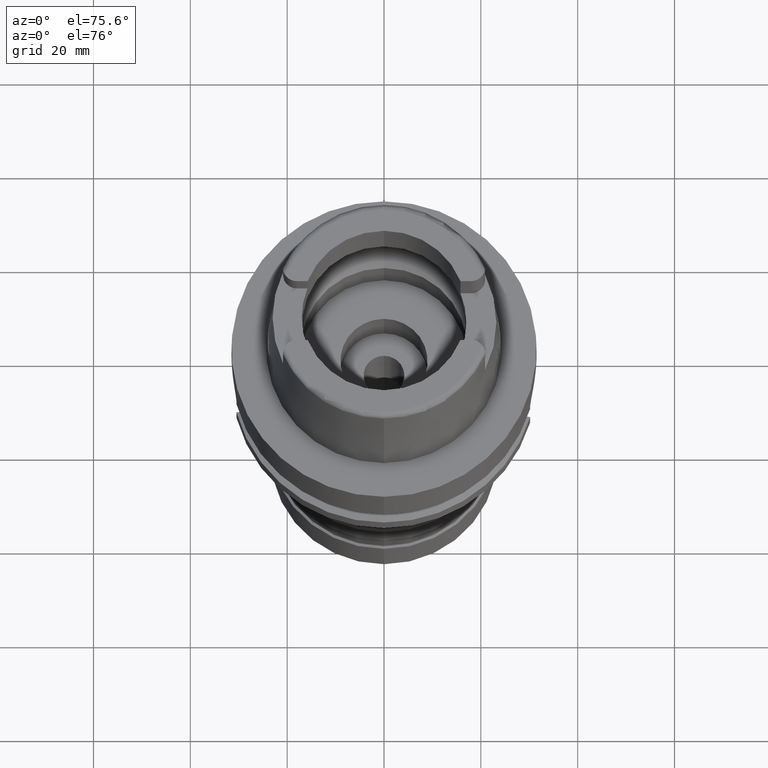
[diagram: clean part render]
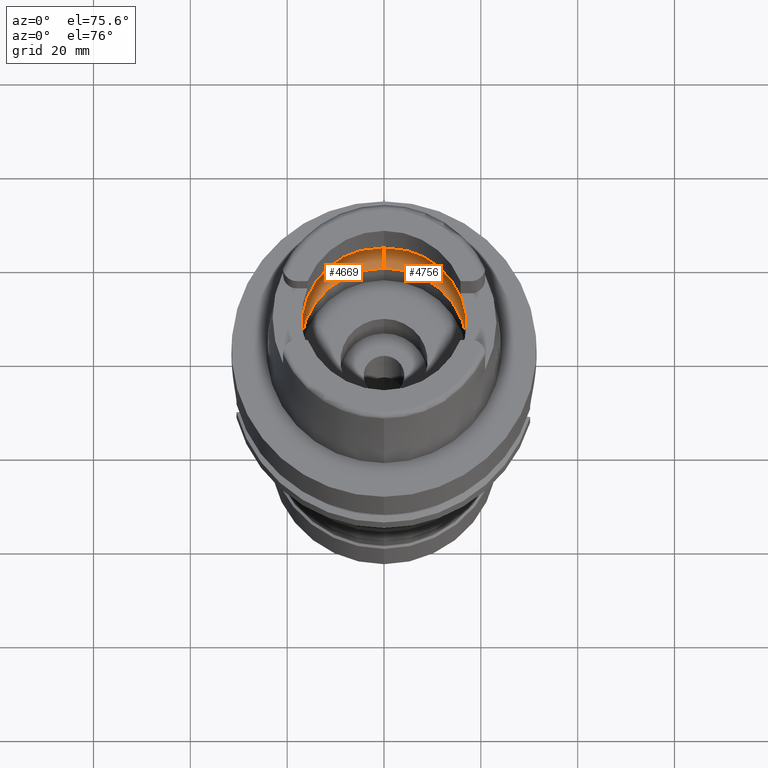
[diagram: same view with one multi-face feature highlighted, each face labeled with its STEP entity id]
A machine part, auxiliary view. The highlighted faces form ONE feature: a constant-radius fillet chain: 2 tangent blend faces with common blend radius 8 mm. The faces share edges in the B-rep.
Their STEP definitions:
[1] entity #4669 (Torus):
#2298=CARTESIAN_POINT('',(-1.984575864666E1,-2.479085262491E0,
6.186348233825E0));
#2299=CARTESIAN_POINT('',(-1.987370782659E1,-2.255344398160E0,
5.989212011764E0));
#2300=CARTESIAN_POINT('',(-1.991332908590E1,-1.758880025312E0,
5.646919634992E0));
#2301=CARTESIAN_POINT('',(-1.994018896865E1,-9.058411913828E-1,
5.323258516694E0));
#2302=CARTESIAN_POINT('',(-1.994501428476E1,-3.022076727851E-1,5.25E0));
#2303=CARTESIAN_POINT('',(-1.994501428476E1,0.E0,5.25E0));
#2308=CARTESIAN_POINT('',(-1.994501428476E1,0.E0,5.25E0));
#2309=CARTESIAN_POINT('',(-1.994501428476E1,3.022082865573E-1,5.25E0));
#2310=CARTESIAN_POINT('',(-1.994018897383E1,9.058427410399E-1,
5.323258570057E0));
#2311=CARTESIAN_POINT('',(-1.991332883264E1,1.758885230496E0,5.646922293853E0));
#2312=CARTESIAN_POINT('',(-1.987370759301E1,2.255346268023E0,5.989213659285E0));
#2313=CARTESIAN_POINT('',(-1.984575864666E1,2.479085262491E0,6.186348233825E0));
#2318=CARTESIAN_POINT('',(0.E0,1.300407714777E-14,6.186348233825E0));
#2319=DIRECTION('',(0.E0,0.E0,-1.E0));
#2320=DIRECTION('',(-9.922879323328E-1,1.239542631245E-1,0.E0));
#2321=AXIS2_PLACEMENT_3D('',#2318,#2319,#2320);
#2326=CARTESIAN_POINT('',(0.E0,1.300407714777E-14,1.500000000001E-1));
#2327=DIRECTION('',(0.E0,0.E0,1.E0));
#2328=DIRECTION('',(0.E0,1.E0,0.E0));
#2329=AXIS2_PLACEMENT_3D('',#2326,#2327,#2328);
#2334=CARTESIAN_POINT('',(0.E0,-1.2E1,6.186348233825E0));
#2335=DIRECTION('',(-1.E0,0.E0,0.E0));
#2336=DIRECTION('',(0.E0,-6.5625E-1,-7.545435292281E-1));
#2337=AXIS2_PLACEMENT_3D('',#2334,#2335,#2336);
#2342=CARTESIAN_POINT('',(0.E0,1.300407714777E-14,6.186348233825E0));
#2343=DIRECTION('',(0.E0,0.E0,-1.E0));
#2344=DIRECTION('',(0.E0,-1.E0,0.E0));
#2345=AXIS2_PLACEMENT_3D('',#2342,#2343,#2344);
#2472=CARTESIAN_POINT('',(0.E0,1.2E1,6.186348233825E0));
#2473=DIRECTION('',(1.E0,0.E0,0.E0));
#2474=DIRECTION('',(0.E0,6.5625E-1,-7.545435292281E-1));
#2475=AXIS2_PLACEMENT_3D('',#2472,#2473,#2474);
#2833=CARTESIAN_POINT('',(0.E0,1.725E1,1.5E-1));
#2834=VERTEX_POINT('',#2833);
#2835=CARTESIAN_POINT('',(0.E0,-1.725E1,1.500000000001E-1));
#2836=VERTEX_POINT('',#2835);
#2837=VERTEX_POINT('',#2298);
#2838=VERTEX_POINT('',#2303);
#2839=VERTEX_POINT('',#2313);
#2840=CARTESIAN_POINT('',(0.E0,2.E1,6.186348233825E0));
#2841=VERTEX_POINT('',#2840);
#2842=CARTESIAN_POINT('',(0.E0,-2.E1,6.186348233825E0));
#2843=VERTEX_POINT('',#2842);
#4649=CARTESIAN_POINT('',(0.E0,1.300407714777E-14,6.186348233825E0));
#4650=DIRECTION('',(0.E0,0.E0,-1.E0));
#4651=DIRECTION('',(0.E0,-1.E0,0.E0));
#4652=AXIS2_PLACEMENT_3D('',#4649,#4650,#4651);
#4653=TOROIDAL_SURFACE('',#4652,1.2E1,8.E0);
#4655=ORIENTED_EDGE('',*,*,#4654,.T.);
#4657=ORIENTED_EDGE('',*,*,#4656,.T.);
#4659=ORIENTED_EDGE('',*,*,#4658,.T.);
#4661=ORIENTED_EDGE('',*,*,#4660,.F.);
#4662=ORIENTED_EDGE('',*,*,#4644,.T.);
#4664=ORIENTED_EDGE('',*,*,#4663,.T.);
#4666=ORIENTED_EDGE('',*,*,#4665,.T.);
#4667=EDGE_LOOP('',(#4655,#4657,#4659,#4661,#4662,#4664,#4666));
#4668=FACE_OUTER_BOUND('',#4667,.F.);
#2304=B_SPLINE_CURVE_WITH_KNOTS('',3,(#2298,#2299,#2300,#2301,#2302,#2303),
.UNSPECIFIED.,.F.,.F.,(4,1,1,4),(0.E0,3.333333333333E-1,6.666666666667E-1,1.E0),
.UNSPECIFIED.);
#2314=B_SPLINE_CURVE_WITH_KNOTS('',3,(#2308,#2309,#2310,#2311,#2312,#2313),
.UNSPECIFIED.,.F.,.F.,(4,1,1,4),(0.E0,3.333333333333E-1,6.666666666667E-1,1.E0),
.UNSPECIFIED.);
#2322=CIRCLE('',#2321,2.E1);
#2330=CIRCLE('',#2329,1.725E1);
#2338=CIRCLE('',#2337,8.E0);
#2346=CIRCLE('',#2345,2.E1);
#2476=CIRCLE('',#2475,8.E0);
#4644=EDGE_CURVE('',#2834,#2836,#2330,.T.);
#4654=EDGE_CURVE('',#2837,#2838,#2304,.T.);
#4656=EDGE_CURVE('',#2838,#2839,#2314,.T.);
#4658=EDGE_CURVE('',#2839,#2841,#2322,.T.);
#4660=EDGE_CURVE('',#2834,#2841,#2476,.T.);
#4663=EDGE_CURVE('',#2836,#2843,#2338,.T.);
#4665=EDGE_CURVE('',#2843,#2837,#2346,.T.);
#4669=ADVANCED_FACE('',(#4668),#4653,.F.);
[2] entity #4756 (Torus):
#2334=CARTESIAN_POINT('',(0.E0,-1.2E1,6.186348233825E0));
#2335=DIRECTION('',(-1.E0,0.E0,0.E0));
#2336=DIRECTION('',(0.E0,-6.5625E-1,-7.545435292281E-1));
#2337=AXIS2_PLACEMENT_3D('',#2334,#2335,#2336);
#2398=CARTESIAN_POINT('',(1.984575864666E1,-2.479085262491E0,6.186348233825E0));
#2427=CARTESIAN_POINT('',(1.984575864666E1,2.479085262491E0,6.186348233825E0));
#2446=CARTESIAN_POINT('',(1.994501428476E1,0.E0,5.25E0));
#2447=CARTESIAN_POINT('',(1.994501428476E1,-3.022112070238E-1,5.25E0));
#2448=CARTESIAN_POINT('',(1.994018885500E1,-9.058493638248E-1,
5.323260239915E0));
#2449=CARTESIAN_POINT('',(1.991332868849E1,-1.758887189824E0,5.646923722537E0));
#2450=CARTESIAN_POINT('',(1.987370750085E1,-2.255347005843E0,5.989214309372E0));
#2451=CARTESIAN_POINT('',(1.984575864666E1,-2.479085262491E0,6.186348233825E0));
#2456=CARTESIAN_POINT('',(0.E0,1.300407714777E-14,6.186348233825E0));
#2457=DIRECTION('',(0.E0,0.E0,-1.E0));
#2458=DIRECTION('',(9.922879323328E-1,-1.239542631245E-1,0.E0));
#2459=AXIS2_PLACEMENT_3D('',#2456,#2457,#2458);
#2464=CARTESIAN_POINT('',(0.E0,1.300407714777E-14,1.500000000001E-1));
#2465=DIRECTION('',(0.E0,0.E0,1.E0));
#2466=DIRECTION('',(0.E0,-1.E0,0.E0));
#2467=AXIS2_PLACEMENT_3D('',#2464,#2465,#2466);
#2472=CARTESIAN_POINT('',(0.E0,1.2E1,6.186348233825E0));
#2473=DIRECTION('',(1.E0,0.E0,0.E0));
#2474=DIRECTION('',(0.E0,6.5625E-1,-7.545435292281E-1));
#2475=AXIS2_PLACEMENT_3D('',#2472,#2473,#2474);
#2480=CARTESIAN_POINT('',(0.E0,1.300407714777E-14,6.186348233825E0));
#2481=DIRECTION('',(0.E0,0.E0,-1.E0));
#2482=DIRECTION('',(0.E0,1.E0,0.E0));
#2483=AXIS2_PLACEMENT_3D('',#2480,#2481,#2482);
#2488=CARTESIAN_POINT('',(1.984575864666E1,2.479085262491E0,6.186348233825E0));
#2489=CARTESIAN_POINT('',(1.987370791740E1,2.255343671189E0,5.989211371236E0));
#2490=CARTESIAN_POINT('',(1.991332922856E1,1.758878096065E0,5.646918222210E0));
#2491=CARTESIAN_POINT('',(1.994018908736E1,9.058345850410E-1,5.323256849204E0));
#2492=CARTESIAN_POINT('',(1.994501428476E1,3.022047592013E-1,5.25E0));
#2493=CARTESIAN_POINT('',(1.994501428476E1,0.E0,5.25E0));
#2833=CARTESIAN_POINT('',(0.E0,1.725E1,1.5E-1));
#2834=VERTEX_POINT('',#2833);
#2835=CARTESIAN_POINT('',(0.E0,-1.725E1,1.500000000001E-1));
#2836=VERTEX_POINT('',#2835);
#2840=CARTESIAN_POINT('',(0.E0,2.E1,6.186348233825E0));
#2841=VERTEX_POINT('',#2840);
#2842=CARTESIAN_POINT('',(0.E0,-2.E1,6.186348233825E0));
#2843=VERTEX_POINT('',#2842);
#2844=VERTEX_POINT('',#2398);
#2846=VERTEX_POINT('',#2446);
#2848=VERTEX_POINT('',#2427);
#4741=CARTESIAN_POINT('',(0.E0,1.300407714777E-14,6.186348233825E0));
#4742=DIRECTION('',(0.E0,0.E0,-1.E0));
#4743=DIRECTION('',(0.E0,-1.E0,0.E0));
#4744=AXIS2_PLACEMENT_3D('',#4741,#4742,#4743);
#4745=TOROIDAL_SURFACE('',#4744,1.2E1,8.E0);
#4746=ORIENTED_EDGE('',*,*,#4731,.T.);
#4747=ORIENTED_EDGE('',*,*,#4720,.T.);
#4748=ORIENTED_EDGE('',*,*,#4663,.F.);
#4749=ORIENTED_EDGE('',*,*,#4628,.T.);
#4750=ORIENTED_EDGE('',*,*,#4660,.T.);
#4751=ORIENTED_EDGE('',*,*,#4714,.T.);
#4753=ORIENTED_EDGE('',*,*,#4752,.T.);
#4754=EDGE_LOOP('',(#4746,#4747,#4748,#4749,#4750,#4751,#4753));
#4755=FACE_OUTER_BOUND('',#4754,.F.);
#2338=CIRCLE('',#2337,8.E0);
#2452=B_SPLINE_CURVE_WITH_KNOTS('',3,(#2446,#2447,#2448,#2449,#2450,#2451),
.UNSPECIFIED.,.F.,.F.,(4,1,1,4),(0.E0,3.333333333333E-1,6.666666666667E-1,1.E0),
.UNSPECIFIED.);
#2460=CIRCLE('',#2459,2.E1);
#2468=CIRCLE('',#2467,1.725E1);
#2476=CIRCLE('',#2475,8.E0);
#2484=CIRCLE('',#2483,2.E1);
#2494=B_SPLINE_CURVE_WITH_KNOTS('',3,(#2488,#2489,#2490,#2491,#2492,#2493),
.UNSPECIFIED.,.F.,.F.,(4,1,1,4),(0.E0,3.333333333333E-1,6.666666666667E-1,1.E0),
.UNSPECIFIED.);
#4628=EDGE_CURVE('',#2836,#2834,#2468,.T.);
#4660=EDGE_CURVE('',#2834,#2841,#2476,.T.);
#4663=EDGE_CURVE('',#2836,#2843,#2338,.T.);
#4714=EDGE_CURVE('',#2841,#2848,#2484,.T.);
#4720=EDGE_CURVE('',#2844,#2843,#2460,.T.);
#4731=EDGE_CURVE('',#2846,#2844,#2452,.T.);
#4752=EDGE_CURVE('',#2848,#2846,#2494,.T.);
#4756=ADVANCED_FACE('',(#4755),#4745,.F.);